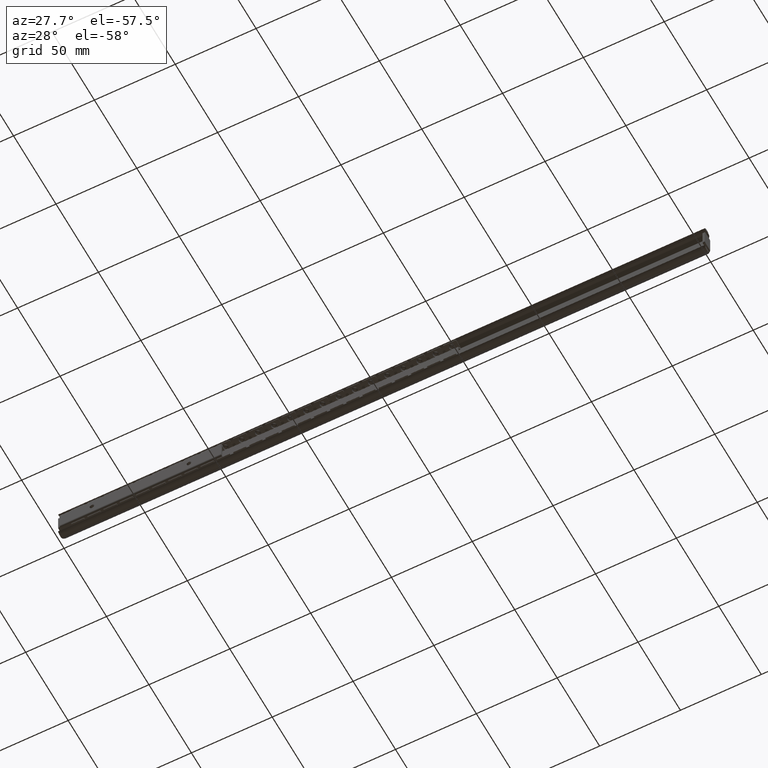
[diagram: clean part render]
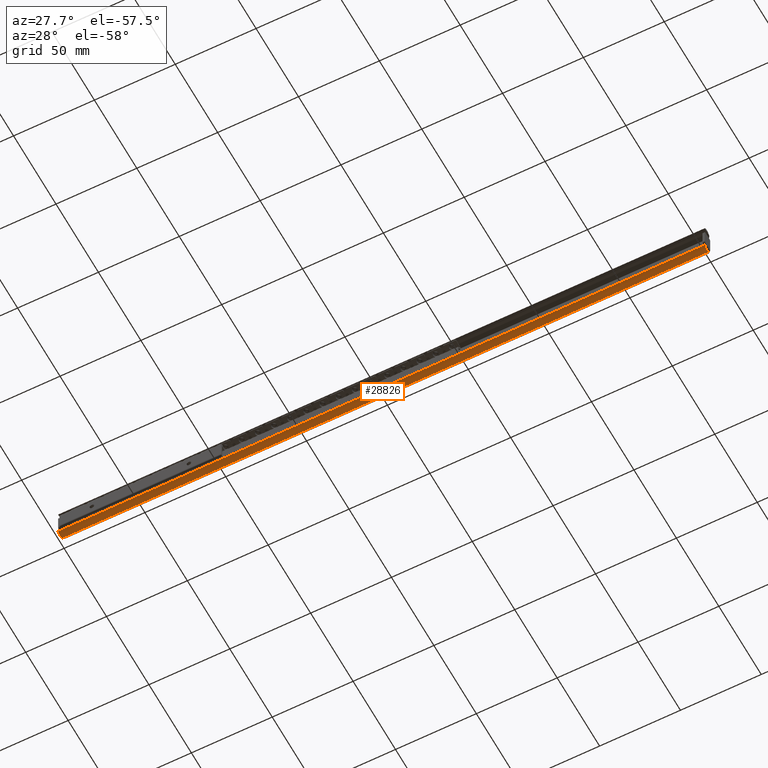
[diagram: same view with one face highlighted and labeled with its STEP entity id]
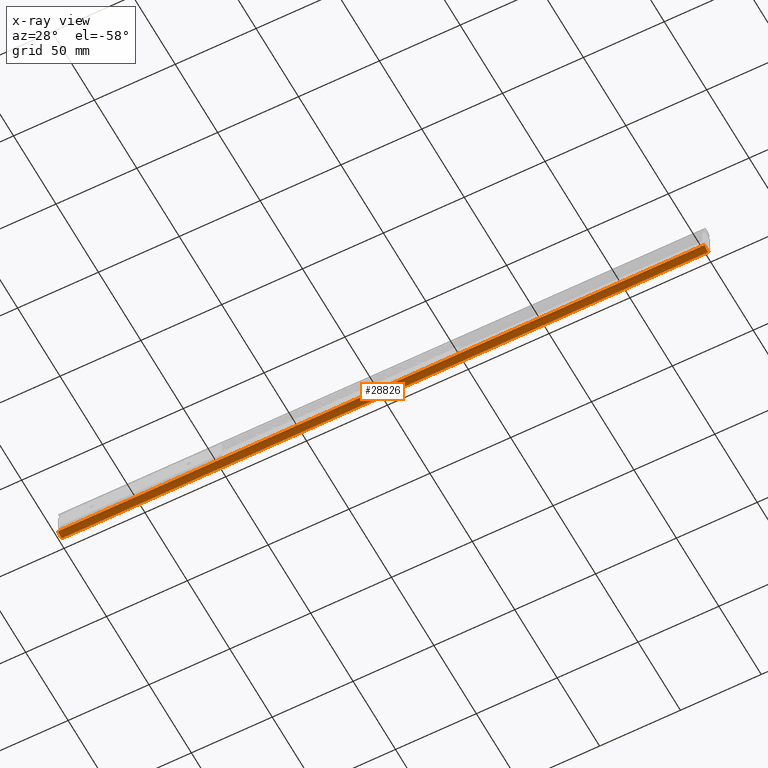
[diagram: x-ray of the same camera — body ghosted, the highlighted face saturated]
A machine part, auxiliary view. The second image highlights one B-rep face of the part: STEP entity #28826.
The next image is the same camera in x-ray: the body ghosted, the highlighted face saturated — about 0% of this face is hidden behind the body in this view.
In plain terms, the highlighted face is a freeform B-spline surface patch.
Its self-contained STEP definition (entity closure, byte-faithful):
#27323=CARTESIAN_POINT('',(399.978470043576520,-7.078071239486540,-8.522037986979019));
#27324=VERTEX_POINT('',#27323);
#27338=CARTESIAN_POINT('',(400.0,-6.945557355833470,-8.728427000000000));
#27339=VERTEX_POINT('',#27338);
#27340=CARTESIAN_POINT('',(399.978470043576520,-7.078071239486540,-8.522037986979019));
#27341=CARTESIAN_POINT('',(399.993393596904530,-7.036644278149491,-8.592789209196409));
#27342=CARTESIAN_POINT('',(400.0,-6.992462636428368,-8.661577096719606));
#27343=CARTESIAN_POINT('',(400.0,-6.945557355833490,-8.728427000000014));
#27344=QUASI_UNIFORM_CURVE('',3,(#27340,#27341,#27342,#27343),.UNSPECIFIED.,.F.,.U.);
#27345=EDGE_CURVE('',#27324,#27339,#27344,.T.);
#28348=CARTESIAN_POINT('',(0.0,-6.945557355833470,-8.728427000000000));
#28349=VERTEX_POINT('',#28348);
#28355=CARTESIAN_POINT('',(0.021529956423461,-7.078071239486540,-8.522037986979019));
#28356=VERTEX_POINT('',#28355);
#28357=CARTESIAN_POINT('',(-7.868711E-017,-6.945557355833491,-8.728427000000012));
#28358=CARTESIAN_POINT('',(-8.966116E-016,-6.992818676011345,-8.661069665330553));
#28359=CARTESIAN_POINT('',(0.006725192559360,-7.036974030578380,-8.592226040027828));
#28360=CARTESIAN_POINT('',(0.021529956423461,-7.078071239486540,-8.522037986979019));
#28361=QUASI_UNIFORM_CURVE('',3,(#28357,#28358,#28359,#28360),.UNSPECIFIED.,.F.,.U.);
#28362=EDGE_CURVE('',#28349,#28356,#28361,.T.);
#28558=CARTESIAN_POINT('',(0.0,-2.466979999999921,-9.201561000000101));
#28559=VERTEX_POINT('',#28558);
#28565=CARTESIAN_POINT('',(0.0,-6.945557355833489,-8.728427000000014));
#28566=CARTESIAN_POINT('',(0.0,-6.165119425343511,-9.840715414181579));
#28567=CARTESIAN_POINT('',(0.0,-4.813864144514684,-9.983467106648719));
#28568=CARTESIAN_POINT('',(0.0,-3.462608863685861,-10.126218799115856));
#28569=CARTESIAN_POINT('',(0.0,-2.466979999999921,-9.201561000000101));
#28577=(BOUNDED_CURVE()B_SPLINE_CURVE(2,(#28565,#28566,#28567,#28568,#28569),.UNSPECIFIED.,.F.,.U.)B_SPLINE_CURVE_WITH_KNOTS((3,2,3),(0.0,0.500000000000000,1.0),.UNSPECIFIED.)CURVE()GEOMETRIC_REPRESENTATION_ITEM()RATIONAL_B_SPLINE_CURVE((1.0,0.910272306830949,1.0,0.910272306830949,1.0))REPRESENTATION_ITEM(''));
#28578=EDGE_CURVE('',#28349,#28559,#28577,.T.);
#28664=CARTESIAN_POINT('',(400.0,-2.466979999999921,-9.201561000000101));
#28665=VERTEX_POINT('',#28664);
#28672=CARTESIAN_POINT('',(400.0,-6.945557355833489,-8.728427000000014));
#28673=CARTESIAN_POINT('',(400.0,-6.165119425343511,-9.840715414181579));
#28674=CARTESIAN_POINT('',(400.0,-4.813864144514684,-9.983467106648719));
#28675=CARTESIAN_POINT('',(400.0,-3.462608863685861,-10.126218799115856));
#28676=CARTESIAN_POINT('',(400.0,-2.466979999999921,-9.201561000000101));
#28684=(BOUNDED_CURVE()B_SPLINE_CURVE(2,(#28672,#28673,#28674,#28675,#28676),.UNSPECIFIED.,.F.,.U.)B_SPLINE_CURVE_WITH_KNOTS((3,2,3),(0.0,0.500000000000000,1.0),.UNSPECIFIED.)CURVE()GEOMETRIC_REPRESENTATION_ITEM()RATIONAL_B_SPLINE_CURVE((1.0,0.910272306830949,1.0,0.910272306830949,1.0))REPRESENTATION_ITEM(''));
#28685=EDGE_CURVE('',#27339,#28665,#28684,.T.);
#28792=CARTESIAN_POINT('',(399.978470043576520,-7.078071239486540,-8.522037986979019));
#28793=CARTESIAN_POINT('',(0.021529956423461,-7.078071239486540,-8.522037986979019));
#28794=QUASI_UNIFORM_CURVE('',1,(#28792,#28793),.UNSPECIFIED.,.F.,.U.);
#28795=EDGE_CURVE('',#27324,#28356,#28794,.T.);
#28800=CARTESIAN_POINT('',(410.000000000000110,-7.128361483693265,-8.432666244155245));
#28801=CARTESIAN_POINT('',(-10.250000000000000,-7.128361483693265,-8.432666244155245));
#28802=CARTESIAN_POINT('',(410.0,-5.139968390697588,-12.112669090005607));
#28803=CARTESIAN_POINT('',(-10.250000000000000,-5.139968390697588,-12.112669090005607));
#28804=CARTESIAN_POINT('',(410.000000000000060,-2.304003409688356,-9.038025913272902));
#28805=CARTESIAN_POINT('',(-10.249999999999998,-2.304003409688356,-9.038025913272902));
#28813=(BOUNDED_SURFACE()B_SPLINE_SURFACE(1,2,((#28800,#28802,#28804),(#28801,#28803,#28805)),.UNSPECIFIED.,.F.,.F.,.U.)B_SPLINE_SURFACE_WITH_KNOTS((2,2),(3,3),(0.0,420.250000000000110),(0.0,6.149971916769985),.UNSPECIFIED.)GEOMETRIC_REPRESENTATION_ITEM()RATIONAL_B_SPLINE_SURFACE(((1.0,0.581021895955603,0.999362604717430),(1.0,0.581021895955603,0.999362604717430)))REPRESENTATION_ITEM('')SURFACE());
#28814=ORIENTED_EDGE('',*,*,#27345,.F.);
#28815=ORIENTED_EDGE('',*,*,#28795,.T.);
#28816=ORIENTED_EDGE('',*,*,#28362,.F.);
#28817=ORIENTED_EDGE('',*,*,#28578,.T.);
#28818=CARTESIAN_POINT('',(400.0,-2.466979999999921,-9.201561000000101));
#28819=CARTESIAN_POINT('',(0.0,-2.466979999999921,-9.201561000000101));
#28820=QUASI_UNIFORM_CURVE('',1,(#28818,#28819),.UNSPECIFIED.,.F.,.U.);
#28821=EDGE_CURVE('',#28665,#28559,#28820,.T.);
#28822=ORIENTED_EDGE('',*,*,#28821,.F.);
#28823=ORIENTED_EDGE('',*,*,#28685,.F.);
#28824=EDGE_LOOP('',(#28814,#28815,#28816,#28817,#28822,#28823));
#28825=FACE_OUTER_BOUND('',#28824,.T.);
#28826=ADVANCED_FACE('',(#28825),#28813,.T.);